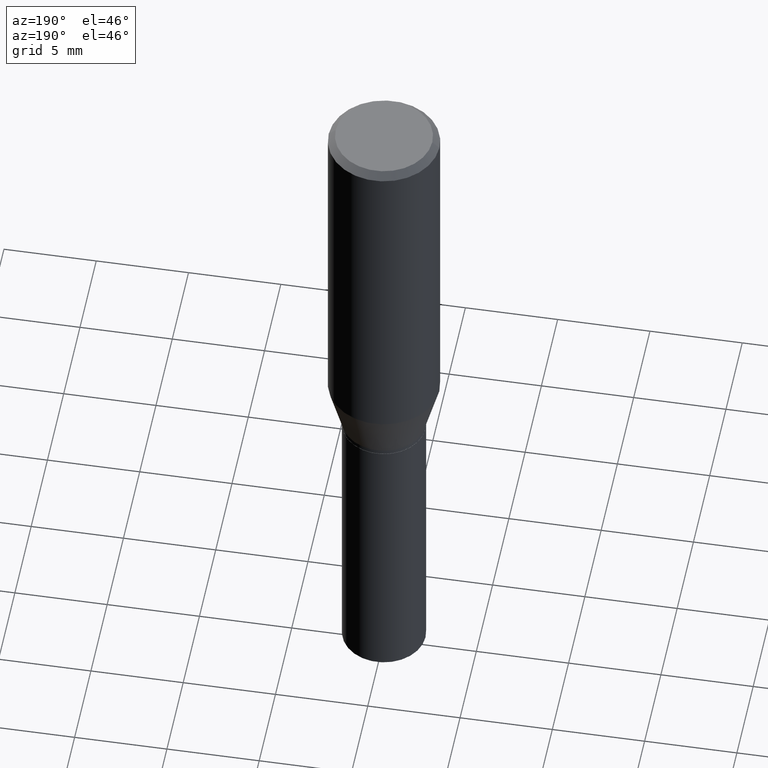
[diagram: clean part render]
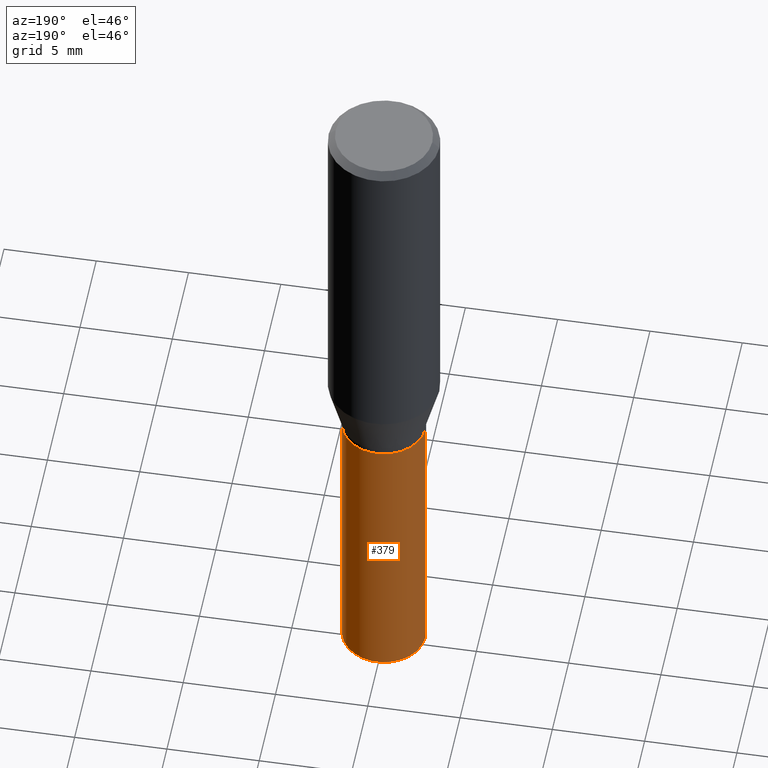
[diagram: same view with one face highlighted and labeled with its STEP entity id]
A machine part, auxiliary view. The second image highlights one B-rep face of the part: STEP entity #379.
In plain terms, the highlighted cylindrical surface (partial cylindrical patch) has radius 2.2504 mm, axis along (-0, 0, 1).
Its self-contained STEP definition (entity closure, byte-faithful):
#13 = DIRECTION ( 'NONE',  ( -2.445468806185136597E-29, 3.491481338843145583E-15, 1.000000000000000000 ) ) ;
#14 = ORIENTED_EDGE ( 'NONE', *, *, #290, .F. ) ;
#28 = VECTOR ( 'NONE', #153, 39.37007874015748143 ) ;
#48 = DIRECTION ( 'NONE',  ( 1.000000000000000000, -6.982962677686266711E-15, 4.876176775795935232E-29 ) ) ;
#50 = EDGE_CURVE ( 'NONE', #66, #443, #217, .T. ) ;
#66 = VERTEX_POINT ( 'NONE', #248 ) ;
#118 = EDGE_CURVE ( 'NONE', #66, #209, #149, .T. ) ;
#122 = AXIS2_PLACEMENT_3D ( 'NONE', #462, #151, #189 ) ;
#137 = AXIS2_PLACEMENT_3D ( 'NONE', #267, #13, #48 ) ;
#149 = LINE ( 'NONE', #291, #173 ) ;
#151 = DIRECTION ( 'NONE',  ( -2.445468806185136597E-29, 3.491481338843145583E-15, 1.000000000000000000 ) ) ;
#152 = AXIS2_PLACEMENT_3D ( 'NONE', #422, #417, #279 ) ;
#153 = DIRECTION ( 'NONE',  ( -2.445468806185136877E-29, 3.491481338843145188E-15, 1.000000000000000000 ) ) ;
#155 = EDGE_CURVE ( 'NONE', #443, #407, #286, .T. ) ;
#166 = ORIENTED_EDGE ( 'NONE', *, *, #155, .T. ) ;
#173 = VECTOR ( 'NONE', #254, 39.37007874015748143 ) ;
#189 = DIRECTION ( 'NONE',  ( 1.000000000000000000, -6.982962677686263555E-15, 0.000000000000000000 ) ) ;
#209 = VERTEX_POINT ( 'NONE', #355 ) ;
#217 = CIRCLE ( 'NONE', #152, 0.08859999999999999820 ) ;
#218 = CARTESIAN_POINT ( 'NONE',  ( -0.08859999999999999820, 6.295408638834487519E-16, -4.358176489965846267E-30 ) ) ;
#227 = EDGE_LOOP ( 'NONE', ( #342, #166, #14, #365 ) ) ;
#248 = CARTESIAN_POINT ( 'NONE',  ( 0.08859999999999999820, -5.855912501507721918E-15, -1.500000000000000222 ) ) ;
#254 = DIRECTION ( 'NONE',  ( -2.445468806185136877E-29, 3.491481338843145188E-15, 1.000000000000000000 ) ) ;
#267 = CARTESIAN_POINT ( 'NONE',  ( 0.000000000000000000, 0.000000000000000000, 0.000000000000000000 ) ) ;
#279 = DIRECTION ( 'NONE',  ( 1.000000000000000000, -6.982962677686269077E-15, 0.000000000000000000 ) ) ;
#286 = LINE ( 'NONE', #218, #28 ) ;
#290 = EDGE_CURVE ( 'NONE', #209, #407, #433, .T. ) ;
#291 = CARTESIAN_POINT ( 'NONE',  ( 0.08859999999999999820, -6.186904932430032487E-16, 4.320292623355198765E-30 ) ) ;
#342 = ORIENTED_EDGE ( 'NONE', *, *, #50, .T. ) ;
#355 = CARTESIAN_POINT ( 'NONE',  ( 0.08859999999999999820, -3.656628406170424159E-15, -0.8701000000000000956 ) ) ;
#365 = ORIENTED_EDGE ( 'NONE', *, *, #118, .F. ) ;
#366 = CYLINDRICAL_SURFACE ( 'NONE', #137, 0.08859999999999999820 ) ;
#369 = CARTESIAN_POINT ( 'NONE',  ( -0.08859999999999999820, -3.508039096712621630E-15, -0.8701000000000000956 ) ) ;
#379 = ADVANCED_FACE ( 'NONE', ( #444 ), #366, .T. ) ;
#396 = CARTESIAN_POINT ( 'NONE',  ( -0.08859999999999999820, -3.508039096712621630E-15, -1.500000000000000222 ) ) ;
#407 = VERTEX_POINT ( 'NONE', #369 ) ;
#417 = DIRECTION ( 'NONE',  ( -2.445468806185136597E-29, 3.491481338843145583E-15, 1.000000000000000000 ) ) ;
#422 = CARTESIAN_POINT ( 'NONE',  ( 3.668203209277704895E-29, -5.237222008264718177E-15, -1.500000000000000222 ) ) ;
#433 = CIRCLE ( 'NONE', #122, 0.08859999999999999820 ) ;
#443 = VERTEX_POINT ( 'NONE', #396 ) ;
#444 = FACE_OUTER_BOUND ( 'NONE', #227, .T. ) ;
#462 = CARTESIAN_POINT ( 'NONE',  ( 2.127802408261687534E-29, -3.037937912927421601E-15, -0.8701000000000000956 ) ) ;